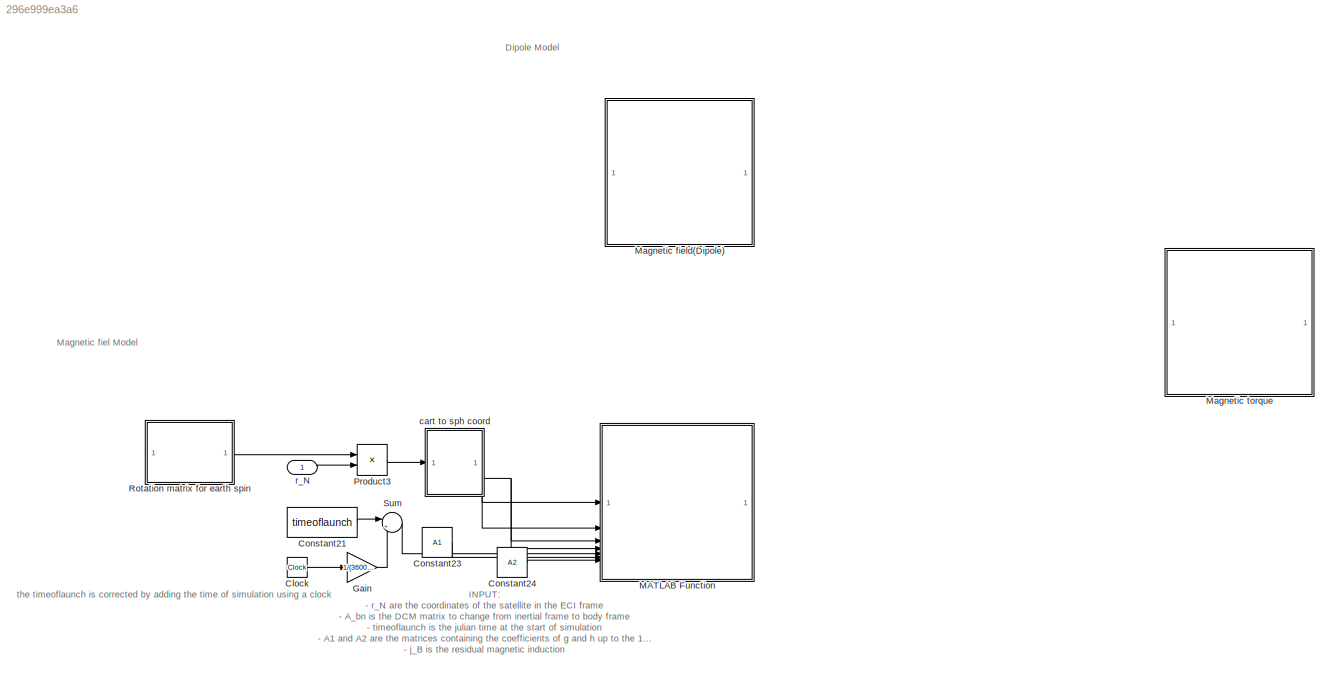
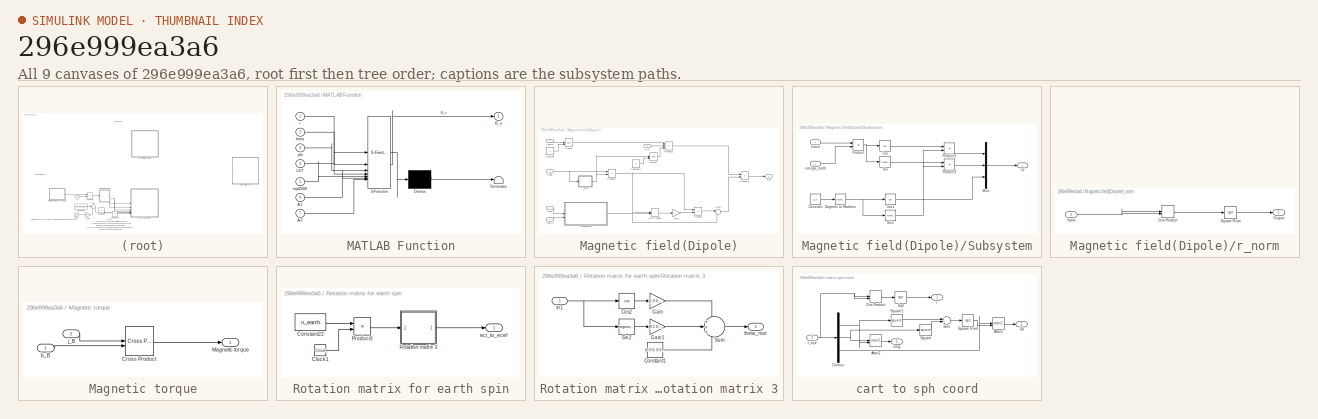
[diagram: thumbnail index - all 9 canvases of the model, root first then tree order]
MODEL slx_296e999ea3a6
KIND model
CONFIG AbsTol = auto
CONFIG EnableMultiTasking = off
CONFIG FixedStep = auto
CONFIG MaxStep = auto
CONFIG MinStep = auto
CONFIG RelTol = 1e-3
CONFIG SampleTimeConstraint = Unconstrained
CONFIG SolverName = VariableStepAuto
CONFIG StartTime = 0.0
CONFIG StopTime = 10.0
BLOCK [Clock] Clock
BLOCK [Constant] Constant21
  Value = timeoflaunch
BLOCK [Constant] Constant23
  Value = A1
BLOCK [Constant] Constant24
  Value = A2
BLOCK [Gain] Gain
  Gain = 1/(3600*24)
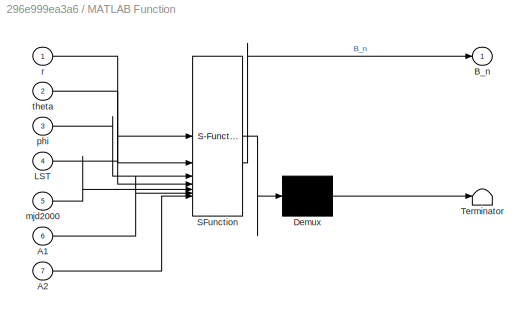
BLOCK [SubSystem] MATLAB Function
  ErrorFcn = Stateflow.Translate.translate
  PermitHierarchicalResolution = ExplicitOnly
  SFBlockType = MATLAB Function
  TreatAsAtomicUnit = on
BLOCK [Demux] MATLAB Function/ Demux 
  Outputs = 1
BLOCK [S-Function] MATLAB Function/ SFunction 
  EnableBusSupport = on
  FunctionName = sf_sfun
  PortCounts = [7 2]
  SFcnIsStateOwnerBlock = off
  SFunctionDeploymentMode = off
  Tag = Stateflow S-Function 2
BLOCK [Terminator] MATLAB Function/ Terminator 
BLOCK [Inport] MATLAB Function/A1
  Port = 6
BLOCK [Inport] MATLAB Function/A2
  Port = 7
BLOCK [Outport] MATLAB Function/B_n
BLOCK [Inport] MATLAB Function/LST
  Port = 4
BLOCK [Inport] MATLAB Function/mjd2000
  Port = 5
BLOCK [Inport] MATLAB Function/phi
  Port = 3
BLOCK [Inport] MATLAB Function/r
BLOCK [Inport] MATLAB Function/theta
  Port = 2
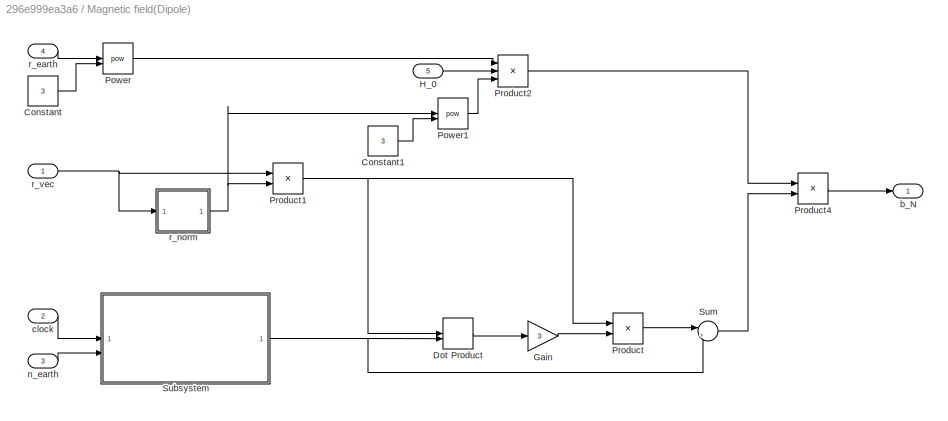
BLOCK [SubSystem] Magnetic field(Dipole)
BLOCK [Constant] Magnetic field(Dipole)/Constant
  Value = 3
BLOCK [Constant] Magnetic field(Dipole)/Constant1
  Value = 3
BLOCK [DotProduct] Magnetic field(Dipole)/Dot Product
  OutDataTypeStr = Inherit: Inherit via internal rule
BLOCK [Gain] Magnetic field(Dipole)/Gain
  Gain = 3
BLOCK [Inport] Magnetic field(Dipole)/H_0
  Port = 5
BLOCK [Math] Magnetic field(Dipole)/Power
  Operator = pow
BLOCK [Math] Magnetic field(Dipole)/Power1
  Operator = pow
BLOCK [Product] Magnetic field(Dipole)/Product
BLOCK [Product] Magnetic field(Dipole)/Product1
  Inputs = */
BLOCK [Product] Magnetic field(Dipole)/Product2
  Inputs = **/
BLOCK [Product] Magnetic field(Dipole)/Product4
BLOCK [SubSystem] Magnetic field(Dipole)/Subsystem
BLOCK [Constant] Magnetic field(Dipole)/Subsystem/Constant
  Value = 11.5
BLOCK [Trigonometry] Magnetic field(Dipole)/Subsystem/Cos
  Operator = cos
BLOCK [Trigonometry] Magnetic field(Dipole)/Subsystem/Cos1
  Operator = cos
BLOCK [Reference] Magnetic field(Dipole)/Subsystem/Degrees to Radians  REF=simulink_extras/Transformations/Degrees to
Radians
  SourceBlock = simulink_extras/Transformations/Degrees to\nRadians
  SourceType = DegreesToRadians
BLOCK [Mux] Magnetic field(Dipole)/Subsystem/Mux
  DisplayOption = bar
  Inputs = 3
BLOCK [Product] Magnetic field(Dipole)/Subsystem/Product
BLOCK [Product] Magnetic field(Dipole)/Subsystem/Product1
BLOCK [Product] Magnetic field(Dipole)/Subsystem/Product2
BLOCK [Trigonometry] Magnetic field(Dipole)/Subsystem/Sin
BLOCK [Trigonometry] Magnetic field(Dipole)/Subsystem/Sin1
BLOCK [Inport] Magnetic field(Dipole)/Subsystem/clock
BLOCK [Outport] Magnetic field(Dipole)/Subsystem/m
BLOCK [Inport] Magnetic field(Dipole)/Subsystem/omega_earth
  Port = 2
BLOCK [Sum] Magnetic field(Dipole)/Sum
  Inputs = |+-
BLOCK [Outport] Magnetic field(Dipole)/b_N
BLOCK [Inport] Magnetic field(Dipole)/clock
  Port = 2
BLOCK [Inport] Magnetic field(Dipole)/n_earth
  Port = 3
BLOCK [Inport] Magnetic field(Dipole)/r_earth
  Port = 4
BLOCK [SubSystem] Magnetic field(Dipole)/r_norm
BLOCK [DotProduct] Magnetic field(Dipole)/r_norm/Dot Product
  OutDataTypeStr = Inherit: Inherit via internal rule
BLOCK [Inport] Magnetic field(Dipole)/r_norm/Input
BLOCK [Outport] Magnetic field(Dipole)/r_norm/Output
BLOCK [Sqrt] Magnetic field(Dipole)/r_norm/Square Root
BLOCK [Inport] Magnetic field(Dipole)/r_vec
BLOCK [SubSystem] Magnetic torque
BLOCK [Reference] Magnetic torque/Cross Product  REF=matrix_library/Cross Product
  LibrarySourceBlock = simulink/Matrix\nOperations/Cross Product
  SourceBlock = matrix_library/Cross Product
  SourceType = CrossProduct
BLOCK [Outport] Magnetic torque/Magnetic torque
BLOCK [Inport] Magnetic torque/b_B
BLOCK [Inport] Magnetic torque/j_B
  Port = 2
BLOCK [Product] Product3
  Multiplication = Matrix(*)
BLOCK [SubSystem] Rotation matrix for earth spin
BLOCK [Clock] Rotation matrix for earth spin/Clock1
BLOCK [Constant] Rotation matrix for earth spin/Constant22
  Value = n_earth
BLOCK [Product] Rotation matrix for earth spin/Product3
BLOCK [SubSystem] Rotation matrix for earth spin/Rotation matrix 3
BLOCK [Constant] Rotation matrix for earth spin/Rotation matrix 3/Constant1
  Value = [0 0 0; 0 0 0; 0 0 1]
BLOCK [Trigonometry] Rotation matrix for earth spin/Rotation matrix 3/Cos2
  Operator = cos
BLOCK [Gain] Rotation matrix for earth spin/Rotation matrix 3/Gain
  Gain = [1 0 0; 0 1 0; 0 0 0]
BLOCK [Gain] Rotation matrix for earth spin/Rotation matrix 3/Gain1
  Gain = [0 1 0; -1 0 0; 0 0 0]
BLOCK [Inport] Rotation matrix for earth spin/Rotation matrix 3/In1
BLOCK [Trigonometry] Rotation matrix for earth spin/Rotation matrix 3/Sin2
BLOCK [Sum] Rotation matrix for earth spin/Rotation matrix 3/Sum
  Inputs = +++
BLOCK [Outport] Rotation matrix for earth spin/Rotation matrix 3/theta_mat
BLOCK [Outport] Rotation matrix for earth spin/eci_to_ecef
BLOCK [Sum] Sum
  Inputs = |++
BLOCK [SubSystem] cart to sph coord
BLOCK [Trigonometry] cart to sph coord/Atan1
  Operator = atan2
BLOCK [Trigonometry] cart to sph coord/Atan2
  Operator = atan2
BLOCK [Demux] cart to sph coord/Demux
  Outputs = 3
BLOCK [DotProduct] cart to sph coord/Dot Product
  OutDataTypeStr = Inherit: Inherit via internal rule
BLOCK [Sqrt] cart to sph coord/Sqrt
BLOCK [Math] cart to sph coord/Square
  Operator = square
BLOCK [Sqrt] cart to sph coord/Square Root
BLOCK [Math] cart to sph coord/Square1
  Operator = square
BLOCK [Sum] cart to sph coord/Sum
  Inputs = |++
BLOCK [Outport] cart to sph coord/lat
  Port = 2
BLOCK [Outport] cart to sph coord/long
  Port = 3
BLOCK [Outport] cart to sph coord/r
BLOCK [Inport] cart to sph coord/r_xyz
BLOCK [Inport] r_N
ANNOTATION (root): Dipole Model
ANNOTATION (root): INPUT: - r_N are the coordinates of the satellite in the ECI frame - A_bn is the DCM matrix to change from inertial frame to body frame - timeoflaunch is the julian time at the start of simulation - A1 and A2 are the matrices containing the coefficients of g and h up to the 13th order - j_B is the residual magnetic induction
ANNOTATION (root): Magnetic fiel Model
ANNOTATION (root): the timeoflaunch is corrected by adding the time of simulation using a clock
LINE Clock:1 -> Gain:1
LINE Constant21:1 -> Sum:1
LINE Constant23:1 -> MATLAB Function:6
LINE Constant24:1 -> MATLAB Function:7
LINE Gain:1 -> Sum:2
LINE Magnetic field(Dipole)/Constant1:1 -> Magnetic field(Dipole)/Power1:2
LINE Magnetic field(Dipole)/Constant:1 -> Magnetic field(Dipole)/Power:2
LINE Magnetic field(Dipole)/Dot Product:1 -> Magnetic field(Dipole)/Gain:1
LINE Magnetic field(Dipole)/Gain:1 -> Magnetic field(Dipole)/Product:2
LINE Magnetic field(Dipole)/H_0:1 -> Magnetic field(Dipole)/Product2:2
LINE Magnetic field(Dipole)/Power1:1 -> Magnetic field(Dipole)/Product2:3
LINE Magnetic field(Dipole)/Power:1 -> Magnetic field(Dipole)/Product2:1
NET Magnetic field(Dipole)/Product1:1 -> Magnetic field(Dipole)/Dot Product:1, Magnetic field(Dipole)/Product:1
LINE Magnetic field(Dipole)/Product2:1 -> Magnetic field(Dipole)/Product4:1
LINE Magnetic field(Dipole)/Product4:1 -> Magnetic field(Dipole)/b_N:1
LINE Magnetic field(Dipole)/Product:1 -> Magnetic field(Dipole)/Sum:1
LINE Magnetic field(Dipole)/Subsystem/Constant:1 -> Magnetic field(Dipole)/Subsystem/Degrees to Radians:1
LINE Magnetic field(Dipole)/Subsystem/Cos1:1 -> Magnetic field(Dipole)/Subsystem/Mux:3
LINE Magnetic field(Dipole)/Subsystem/Cos:1 -> Magnetic field(Dipole)/Subsystem/Product1:1
NET Magnetic field(Dipole)/Subsystem/Degrees to Radians:1 -> Magnetic field(Dipole)/Subsystem/Cos1:1, Magnetic field(Dipole)/Subsystem/Sin1:1
LINE Magnetic field(Dipole)/Subsystem/Mux:1 -> Magnetic field(Dipole)/Subsystem/m:1
LINE Magnetic field(Dipole)/Subsystem/Product1:1 -> Magnetic field(Dipole)/Subsystem/Mux:1
LINE Magnetic field(Dipole)/Subsystem/Product2:1 -> Magnetic field(Dipole)/Subsystem/Mux:2
NET Magnetic field(Dipole)/Subsystem/Product:1 -> Magnetic field(Dipole)/Subsystem/Cos:1, Magnetic field(Dipole)/Subsystem/Sin:1
NET Magnetic field(Dipole)/Subsystem/Sin1:1 -> Magnetic field(Dipole)/Subsystem/Product1:2, Magnetic field(Dipole)/Subsystem/Product2:2
LINE Magnetic field(Dipole)/Subsystem/Sin:1 -> Magnetic field(Dipole)/Subsystem/Product2:1
LINE Magnetic field(Dipole)/Subsystem/clock:1 -> Magnetic field(Dipole)/Subsystem/Product:1
LINE Magnetic field(Dipole)/Subsystem/omega_earth:1 -> Magnetic field(Dipole)/Subsystem/Product:2
NET Magnetic field(Dipole)/Subsystem:1 -> Magnetic field(Dipole)/Dot Product:2, Magnetic field(Dipole)/Sum:2
LINE Magnetic field(Dipole)/Sum:1 -> Magnetic field(Dipole)/Product4:2
LINE Magnetic field(Dipole)/clock:1 -> Magnetic field(Dipole)/Subsystem:1
LINE Magnetic field(Dipole)/n_earth:1 -> Magnetic field(Dipole)/Subsystem:2
LINE Magnetic field(Dipole)/r_earth:1 -> Magnetic field(Dipole)/Power:1
LINE Magnetic field(Dipole)/r_norm/Dot Product:1 -> Magnetic field(Dipole)/r_norm/Square Root:1
NET Magnetic field(Dipole)/r_norm/Input:1 -> Magnetic field(Dipole)/r_norm/Dot Product:1, Magnetic field(Dipole)/r_norm/Dot Product:2
LINE Magnetic field(Dipole)/r_norm/Square Root:1 -> Magnetic field(Dipole)/r_norm/Output:1
NET Magnetic field(Dipole)/r_norm:1 -> Magnetic field(Dipole)/Power1:1, Magnetic field(Dipole)/Product1:2
NET Magnetic field(Dipole)/r_vec:1 -> Magnetic field(Dipole)/Product1:1, Magnetic field(Dipole)/r_norm:1
LINE Magnetic torque/Cross Product:1 -> Magnetic torque/Magnetic torque:1
LINE Magnetic torque/b_B:1 -> Magnetic torque/Cross Product:2
LINE Magnetic torque/j_B:1 -> Magnetic torque/Cross Product:1
LINE Product3:1 -> cart to sph coord:1
LINE Rotation matrix for earth spin/Clock1:1 -> Rotation matrix for earth spin/Product3:2
LINE Rotation matrix for earth spin/Constant22:1 -> Rotation matrix for earth spin/Product3:1
LINE Rotation matrix for earth spin/Product3:1 -> Rotation matrix for earth spin/Rotation matrix 3:1
LINE Rotation matrix for earth spin/Rotation matrix 3/Constant1:1 -> Rotation matrix for earth spin/Rotation matrix 3/Sum:3
LINE Rotation matrix for earth spin/Rotation matrix 3/Cos2:1 -> Rotation matrix for earth spin/Rotation matrix 3/Gain:1
LINE Rotation matrix for earth spin/Rotation matrix 3/Gain1:1 -> Rotation matrix for earth spin/Rotation matrix 3/Sum:2
LINE Rotation matrix for earth spin/Rotation matrix 3/Gain:1 -> Rotation matrix for earth spin/Rotation matrix 3/Sum:1
NET Rotation matrix for earth spin/Rotation matrix 3/In1:1 -> Rotation matrix for earth spin/Rotation matrix 3/Cos2:1, Rotation matrix for earth spin/Rotation matrix 3/Sin2:1
LINE Rotation matrix for earth spin/Rotation matrix 3/Sin2:1 -> Rotation matrix for earth spin/Rotation matrix 3/Gain1:1
LINE Rotation matrix for earth spin/Rotation matrix 3/Sum:1 -> Rotation matrix for earth spin/Rotation matrix 3/theta_mat:1
LINE Rotation matrix for earth spin/Rotation matrix 3:1 -> Rotation matrix for earth spin/eci_to_ecef:1
LINE Rotation matrix for earth spin:1 -> Product3:1
LINE Sum:1 -> MATLAB Function:5
LINE cart to sph coord/Atan1:1 -> cart to sph coord/lat:1
LINE cart to sph coord/Atan2:1 -> cart to sph coord/long:1
NET cart to sph coord/Demux:1 -> cart to sph coord/Atan2:2, cart to sph coord/Square1:1
NET cart to sph coord/Demux:2 -> cart to sph coord/Atan2:1, cart to sph coord/Square:1
LINE cart to sph coord/Demux:3 -> cart to sph coord/Atan1:1
LINE cart to sph coord/Dot Product:1 -> cart to sph coord/Sqrt:1
LINE cart to sph coord/Sqrt:1 -> cart to sph coord/r:1
LINE cart to sph coord/Square Root:1 -> cart to sph coord/Atan1:2
LINE cart to sph coord/Square1:1 -> cart to sph coord/Sum:1
LINE cart to sph coord/Square:1 -> cart to sph coord/Sum:2
LINE cart to sph coord/Sum:1 -> cart to sph coord/Square Root:1
NET cart to sph coord/r_xyz:1 -> cart to sph coord/Demux:1, cart to sph coord/Dot Product:1, cart to sph coord/Dot Product:2
LINE cart to sph coord:1 -> MATLAB Function:1
LINE cart to sph coord:2 -> MATLAB Function:2
NET cart to sph coord:3 -> MATLAB Function:3, MATLAB Function:4
LINE r_N:1 -> Product3:2
note: NET lines group one-source signal fan-out (src -> all destinations, sorted); 1:1 wires keep LINE
CHART MATLAB Function states=1 transitions=1
  STATE_LABEL 'eML_blk_kernel()'
  STATE_LABEL 'SCRIPT:\nfunction B_n = magnetic_field_model(r,theta,phi, LST, mjd2000, A1, A2)\n\n%   mjd2000[1]  Date in MJD 2000. MJD2000 is defined as the number of days\n%               since 01-01-2000, 12:00 noon.\ndays = mjd2000 - 7305;      % 7305 is the Julian time from 2000 to 2020\n\n% Inputs\n% r         Geocentric radius\n% theta     Latitude measured in degrees positive from equator  \n% phi       Longitude ...<+806ch>'
CHART  states=0 transitions=0
